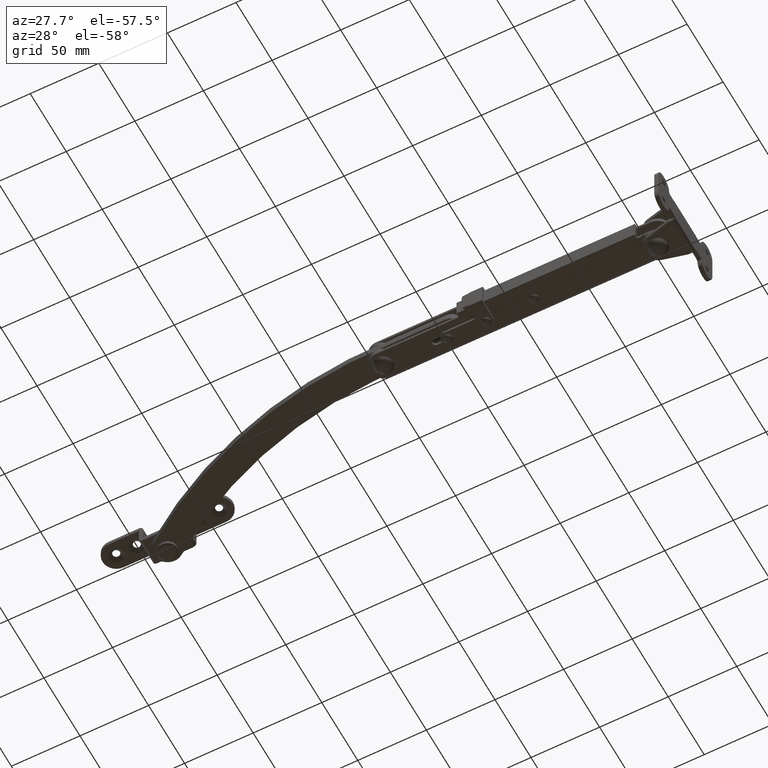
[diagram: clean part render]
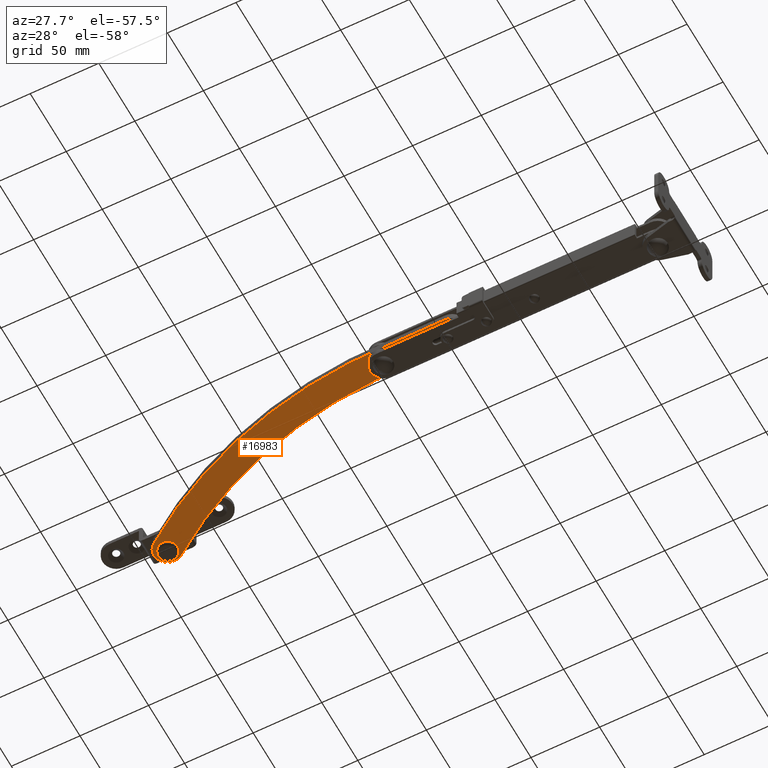
[diagram: same view with one face highlighted and labeled with its STEP entity id]
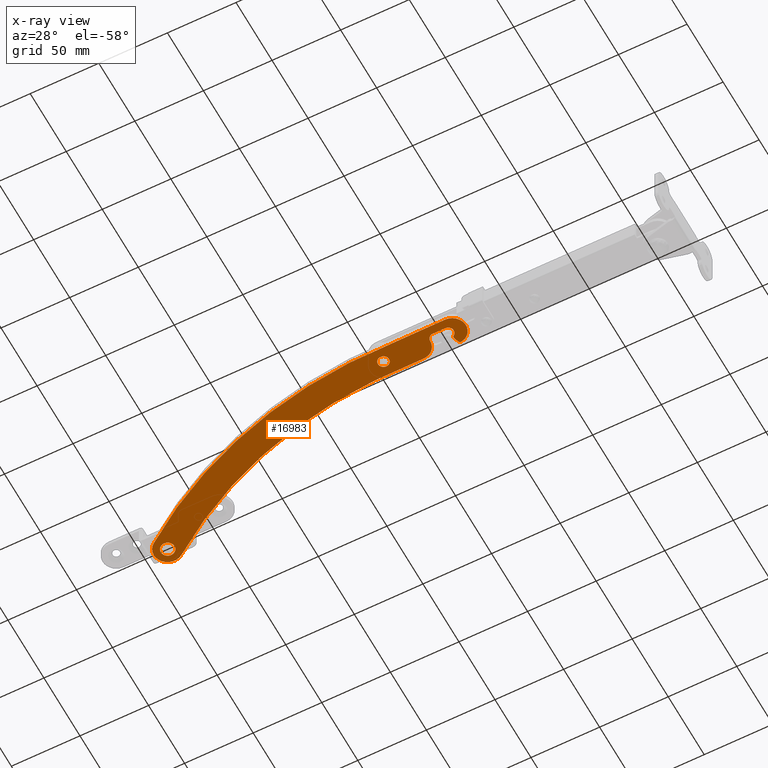
[diagram: x-ray of the same camera — body ghosted, the highlighted face saturated]
A machine part, auxiliary view. The second image highlights one B-rep face of the part: STEP entity #16983.
The next image is the same camera in x-ray: the body ghosted, the highlighted face saturated — about 0% of this face is hidden behind the body in this view.
In plain terms, the highlighted planar face has unit normal (0, 0, -1).
Its self-contained STEP definition (entity closure, byte-faithful):
#4 = AXIS2_PLACEMENT_3D ( 'NONE', #7886, #17259, #9210 ) ;
#16 = CARTESIAN_POINT ( 'NONE',  ( -400.0944209999999000, 62.25456200000019900, -2.500000000000000000 ) ) ;
#80 = CARTESIAN_POINT ( 'NONE',  ( -390.0944210000000100, 62.25456200000019900, -2.500000000000000000 ) ) ;
#166 = CIRCLE ( 'NONE', #11051, 1.999999999999946300 ) ;
#403 = AXIS2_PLACEMENT_3D ( 'NONE', #9943, #1928, #11292 ) ;
#450 = CIRCLE ( 'NONE', #5462, 331.0000000000000600 ) ;
#537 = ORIENTED_EDGE ( 'NONE', *, *, #7582, .T. ) ;
#558 = ORIENTED_EDGE ( 'NONE', *, *, #10688, .T. ) ;
#584 = DIRECTION ( 'NONE',  ( -0.9999867699363695900, 0.005143923816146010000, 0.0000000000000000000 ) ) ;
#984 = EDGE_LOOP ( 'NONE', ( #16125, #14957 ) ) ;
#1027 = EDGE_CURVE ( 'NONE', #8924, #13324, #14780, .T. ) ;
#1157 = EDGE_CURVE ( 'NONE', #16368, #7941, #166, .T. ) ;
#1212 = AXIS2_PLACEMENT_3D ( 'NONE', #13767, #5725, #15075 ) ;
#1330 = CARTESIAN_POINT ( 'NONE',  ( -152.8789256107080000, -4.100003260249288900, -2.500000000000000000 ) ) ;
#1411 = DIRECTION ( 'NONE',  ( -1.000000000000000000, 0.0000000000000000000, 0.0000000000000000000 ) ) ;
#1519 = CARTESIAN_POINT ( 'NONE',  ( -165.9922938287721200, 0.003207617166450330400, -2.500000000000000000 ) ) ;
#1634 = DIRECTION ( 'NONE',  ( -0.0000000000000000000, 0.0000000000000000000, -1.000000000000000000 ) ) ;
#1767 = CARTESIAN_POINT ( 'NONE',  ( -199.9999689999999900, 0.0000000000000000000, -2.500000000000000000 ) ) ;
#1845 = EDGE_CURVE ( 'NONE', #6040, #8254, #14354, .T. ) ;
#1863 = CARTESIAN_POINT ( 'NONE',  ( -149.3073321932707000, 4.945067042652248700, -2.500000000000000000 ) ) ;
#1928 = DIRECTION ( 'NONE',  ( 0.0000000000000000000, 0.0000000000000000000, -1.000000000000000000 ) ) ;
#1934 = CIRCLE ( 'NONE', #4, 9.999999999999897000 ) ;
#2192 = VERTEX_POINT ( 'NONE', #6268 ) ;
#2231 = CARTESIAN_POINT ( 'NONE',  ( -151.2229849175185700, 5.519762301099167000, -2.500000000000000000 ) ) ;
#2401 = CARTESIAN_POINT ( 'NONE',  ( -390.0396720000000000, 62.32917800000009800, -2.500000000000000000 ) ) ;
#3027 = CARTESIAN_POINT ( 'NONE',  ( -199.9999689999999900, 0.0000000000000000000, -2.500000000000000000 ) ) ;
#3110 = DIRECTION ( 'NONE',  ( 1.000000000000000000, 0.0000000000000000000, 0.0000000000000000000 ) ) ;
#3143 = CARTESIAN_POINT ( 'NONE',  ( -200.1210320000000100, 321.0000000000000000, -2.500000000000000000 ) ) ;
#3200 = DIRECTION ( 'NONE',  ( 1.000000000000000000, 0.0000000000000000000, 0.0000000000000000000 ) ) ;
#3434 = EDGE_CURVE ( 'NONE', #15700, #7438, #9728, .T. ) ;
#3469 = AXIS2_PLACEMENT_3D ( 'NONE', #2401, #11768, #3750 ) ;
#3750 = DIRECTION ( 'NONE',  ( 1.000000000000000000, 0.0000000000000000000, 0.0000000000000000000 ) ) ;
#3815 = CIRCLE ( 'NONE', #13217, 10.00000000000003700 ) ;
#3919 = ORIENTED_EDGE ( 'NONE', *, *, #17278, .T. ) ;
#3987 = CIRCLE ( 'NONE', #3469, 5.000000000000004400 ) ;
#4099 = DIRECTION ( 'NONE',  ( -0.0000000000000000000, 0.0000000000000000000, -1.000000000000000000 ) ) ;
#4106 = LINE ( 'NONE', #2231, #14359 ) ;
#4171 = FACE_OUTER_BOUND ( 'NONE', #15036, .T. ) ;
#4243 = AXIS2_PLACEMENT_3D ( 'NONE', #16113, #13506, #5467 ) ;
#4294 = DIRECTION ( 'NONE',  ( 0.0000000000000000000, -0.0000000000000000000, 1.000000000000000000 ) ) ;
#4371 = DIRECTION ( 'NONE',  ( 1.000000000000000000, 0.0000000000000000000, 0.0000000000000000000 ) ) ;
#4431 = CARTESIAN_POINT ( 'NONE',  ( -396.0186068210719600, 54.07446283450070000, -2.500000000000000000 ) ) ;
#4472 = VECTOR ( 'NONE', #13363, 1000.000000000000100 ) ;
#4479 = DIRECTION ( 'NONE',  ( 1.000000000000000000, 0.0000000000000000000, 0.0000000000000000000 ) ) ;
#4539 = VECTOR ( 'NONE', #10697, 1000.000000000000100 ) ;
#4697 = EDGE_CURVE ( 'NONE', #8254, #6040, #5498, .T. ) ;
#5132 = CIRCLE ( 'NONE', #10228, 9.999999999999897000 ) ;
#5231 = ORIENTED_EDGE ( 'NONE', *, *, #6882, .T. ) ;
#5306 = ORIENTED_EDGE ( 'NONE', *, *, #6057, .T. ) ;
#5462 = AXIS2_PLACEMENT_3D ( 'NONE', #14377, #6374, #15702 ) ;
#5467 = DIRECTION ( 'NONE',  ( -1.000000000000000000, 0.0000000000000000000, -0.0000000000000000000 ) ) ;
#5485 = CIRCLE ( 'NONE', #403, 9.999999999999980500 ) ;
#5498 = CIRCLE ( 'NONE', #13771, 4.049999999999998000 ) ;
#5568 = AXIS2_PLACEMENT_3D ( 'NONE', #12328, #4294, #13669 ) ;
#5725 = DIRECTION ( 'NONE',  ( -0.0000000000000000000, 0.0000000000000000000, -1.000000000000000000 ) ) ;
#5787 = DIRECTION ( 'NONE',  ( 1.000000000000000000, 0.0000000000000000000, 0.0000000000000000000 ) ) ;
#5978 = ORIENTED_EDGE ( 'NONE', *, *, #1027, .T. ) ;
#6040 = VERTEX_POINT ( 'NONE', #16511 ) ;
#6057 = EDGE_CURVE ( 'NONE', #11705, #12686, #16172, .T. ) ;
#6084 = CARTESIAN_POINT ( 'NONE',  ( -395.9599515159129600, 54.15545391534716700, -2.500000000000000000 ) ) ;
#6214 = CARTESIAN_POINT ( 'NONE',  ( -152.8789256107080000, -4.100003260249291500, -2.500000000000000000 ) ) ;
#6256 = ORIENTED_EDGE ( 'NONE', *, *, #6762, .T. ) ;
#6268 = CARTESIAN_POINT ( 'NONE',  ( -150.4783464358345400, 3.323732517110905300, -2.500000000000000000 ) ) ;
#6290 = FACE_BOUND ( 'NONE', #984, .T. ) ;
#6339 = ORIENTED_EDGE ( 'NONE', *, *, #17304, .T. ) ;
#6374 = DIRECTION ( 'NONE',  ( 0.0000000000000000000, 0.0000000000000000000, -1.000000000000000000 ) ) ;
#6624 = CARTESIAN_POINT ( 'NONE',  ( -152.8789256330900900, -3.260249296227479800E-006, -2.500000000000000000 ) ) ;
#6762 = EDGE_CURVE ( 'NONE', #13324, #2192, #11367, .T. ) ;
#6882 = EDGE_CURVE ( 'NONE', #8015, #13680, #3815, .T. ) ;
#6883 = CARTESIAN_POINT ( 'NONE',  ( -149.3073321932707000, 4.945067042652248700, -2.500000000000000000 ) ) ;
#7082 = CARTESIAN_POINT ( 'NONE',  ( -149.8789394428774500, -10.00002549482168500, -2.500000000000000000 ) ) ;
#7172 = AXIS2_PLACEMENT_3D ( 'NONE', #9639, #1634, #10994 ) ;
#7209 = DIRECTION ( 'NONE',  ( 0.0000000000000000000, 0.0000000000000000000, -1.000000000000000000 ) ) ;
#7223 = CIRCLE ( 'NONE', #12828, 0.09999999999993347500 ) ;
#7314 = CARTESIAN_POINT ( 'NONE',  ( -384.3714106253735300, 70.45499810132565700, -2.500000000000000000 ) ) ;
#7409 = EDGE_CURVE ( 'NONE', #16491, #13508, #1934, .T. ) ;
#7438 = VERTEX_POINT ( 'NONE', #7936 ) ;
#7582 = EDGE_CURVE ( 'NONE', #9775, #8015, #14464, .T. ) ;
#7692 = ORIENTED_EDGE ( 'NONE', *, *, #1157, .T. ) ;
#7693 = CARTESIAN_POINT ( 'NONE',  ( -150.3461770281395500, 8.442458107691136200, -2.500000000000000000 ) ) ;
#7829 = VECTOR ( 'NONE', #584, 1000.000000000000000 ) ;
#7883 = VERTEX_POINT ( 'NONE', #12819 ) ;
#7886 = CARTESIAN_POINT ( 'NONE',  ( -390.0944210000000100, 62.25456200000019900, -2.500000000000000000 ) ) ;
#7936 = CARTESIAN_POINT ( 'NONE',  ( -395.0396720000000000, 62.32917800000009800, -2.500000000000000000 ) ) ;
#7941 = VERTEX_POINT ( 'NONE', #16093 ) ;
#7954 = DIRECTION ( 'NONE',  ( 1.000000000000000000, 0.0000000000000000000, 0.0000000000000000000 ) ) ;
#7978 = ORIENTED_EDGE ( 'NONE', *, *, #4697, .F. ) ;
#8014 = CARTESIAN_POINT ( 'NONE',  ( -395.9460600592290100, 54.14328846450936100, -2.500000000000000000 ) ) ;
#8015 = VERTEX_POINT ( 'NONE', #9490 ) ;
#8026 = LINE ( 'NONE', #10666, #4472 ) ;
#8218 = DIRECTION ( 'NONE',  ( 1.000000000000000000, 0.0000000000000000000, 0.0000000000000000000 ) ) ;
#8254 = VERTEX_POINT ( 'NONE', #9229 ) ;
#8776 = CIRCLE ( 'NONE', #13223, 311.0000000000004000 ) ;
#8924 = VERTEX_POINT ( 'NONE', #14538 ) ;
#9210 = DIRECTION ( 'NONE',  ( -1.000000000000000000, 0.0000000000000000000, 0.0000000000000000000 ) ) ;
#9229 = CARTESIAN_POINT ( 'NONE',  ( -195.9499690000000100, 4.959819536546777600E-016, -2.500000000000000000 ) ) ;
#9312 = ORIENTED_EDGE ( 'NONE', *, *, #11805, .T. ) ;
#9404 = DIRECTION ( 'NONE',  ( 0.0000000000000000000, 0.0000000000000000000, -1.000000000000000000 ) ) ;
#9490 = CARTESIAN_POINT ( 'NONE',  ( -148.0684205054978100, 9.834709935260610400, -2.500000000000000000 ) ) ;
#9623 = AXIS2_PLACEMENT_3D ( 'NONE', #6624, #15951, #7954 ) ;
#9639 = CARTESIAN_POINT ( 'NONE',  ( -148.4305243038916400, 7.867762849244157600, -2.500000000000000000 ) ) ;
#9728 = CIRCLE ( 'NONE', #1212, 5.000000000000004400 ) ;
#9775 = VERTEX_POINT ( 'NONE', #7693 ) ;
#9779 = CARTESIAN_POINT ( 'NONE',  ( -151.3073321932706400, 4.945067042652248700, -2.500000000000000000 ) ) ;
#9943 = CARTESIAN_POINT ( 'NONE',  ( -175.9922936823581100, 0.001496395371794600900, -2.500000000000000000 ) ) ;
#10086 = CARTESIAN_POINT ( 'NONE',  ( -385.0396720000000000, 62.32917800000009800, -2.500000000000000000 ) ) ;
#10093 = ORIENTED_EDGE ( 'NONE', *, *, #12246, .T. ) ;
#10135 = ORIENTED_EDGE ( 'NONE', *, *, #1845, .F. ) ;
#10228 = AXIS2_PLACEMENT_3D ( 'NONE', #80, #9404, #1411 ) ;
#10258 = DIRECTION ( 'NONE',  ( 0.2873476292234573000, 0.9578263621239804200, 0.0000000000000000000 ) ) ;
#10431 = EDGE_CURVE ( 'NONE', #7941, #9775, #4106, .T. ) ;
#10666 = CARTESIAN_POINT ( 'NONE',  ( -175.8193033078046300, 9.999999999927416300, -2.500000000000000000 ) ) ;
#10688 = EDGE_CURVE ( 'NONE', #13508, #13805, #5132, .T. ) ;
#10697 = DIRECTION ( 'NONE',  ( 0.9999999057722428500, -0.0004341146224644208700, -0.0000000000000000000 ) ) ;
#10815 = VERTEX_POINT ( 'NONE', #1519 ) ;
#10994 = DIRECTION ( 'NONE',  ( 1.000000000000000000, 0.0000000000000000000, 0.0000000000000000000 ) ) ;
#11051 = AXIS2_PLACEMENT_3D ( 'NONE', #6883, #16226, #8218 ) ;
#11132 = DIRECTION ( 'NONE',  ( -0.0000000000000000000, 0.0000000000000000000, -1.000000000000000000 ) ) ;
#11222 = DIRECTION ( 'NONE',  ( -0.0000000000000000000, 0.0000000000000000000, -1.000000000000000000 ) ) ;
#11292 = DIRECTION ( 'NONE',  ( -1.000000000000000000, 0.0000000000000000000, 0.0000000000000000000 ) ) ;
#11367 = CIRCLE ( 'NONE', #9623, 4.099999999999992500 ) ;
#11409 = LINE ( 'NONE', #16588, #7829 ) ;
#11521 = AXIS2_PLACEMENT_3D ( 'NONE', #1767, #11132, #3110 ) ;
#11705 = VERTEX_POINT ( 'NONE', #15435 ) ;
#11768 = DIRECTION ( 'NONE',  ( -0.0000000000000000000, 0.0000000000000000000, -1.000000000000000000 ) ) ;
#11805 = EDGE_CURVE ( 'NONE', #12686, #16491, #7223, .T. ) ;
#12123 = CARTESIAN_POINT ( 'NONE',  ( -149.8789394974679700, -2.549482167393812800E-005, -2.500000000000000000 ) ) ;
#12163 = PLANE ( 'NONE',  #4243 ) ;
#12246 = EDGE_CURVE ( 'NONE', #13680, #7883, #11409, .T. ) ;
#12328 = CARTESIAN_POINT ( 'NONE',  ( -161.8922938888019900, 0.003909218102257571200, -2.500000000000000000 ) ) ;
#12408 = DIRECTION ( 'NONE',  ( -0.0000000000000000000, 0.0000000000000000000, -1.000000000000000000 ) ) ;
#12528 = DIRECTION ( 'NONE',  ( 0.0000000000000000000, -0.0000000000000000000, 1.000000000000000000 ) ) ;
#12630 = ORIENTED_EDGE ( 'NONE', *, *, #16702, .T. ) ;
#12642 = EDGE_CURVE ( 'NONE', #15180, #12846, #8026, .T. ) ;
#12686 = VERTEX_POINT ( 'NONE', #8014 ) ;
#12783 = CARTESIAN_POINT ( 'NONE',  ( -211.2709216193495600, 10.19993571191711200, -2.500000000000000000 ) ) ;
#12819 = CARTESIAN_POINT ( 'NONE',  ( -188.6353280995979800, -9.800662946603370800, -2.500000000000000000 ) ) ;
#12828 = AXIS2_PLACEMENT_3D ( 'NONE', #4431, #13819, #5787 ) ;
#12846 = VERTEX_POINT ( 'NONE', #14908 ) ;
#13189 = ORIENTED_EDGE ( 'NONE', *, *, #12642, .T. ) ;
#13217 = AXIS2_PLACEMENT_3D ( 'NONE', #12123, #4099, #13466 ) ;
#13223 = AXIS2_PLACEMENT_3D ( 'NONE', #3143, #12528, #4479 ) ;
#13324 = VERTEX_POINT ( 'NONE', #6214 ) ;
#13363 = DIRECTION ( 'NONE',  ( 0.9999840973953542100, -0.005639588318201127000, -0.0000000000000000000 ) ) ;
#13376 = ORIENTED_EDGE ( 'NONE', *, *, #15471, .T. ) ;
#13466 = DIRECTION ( 'NONE',  ( 1.000000000000000000, 0.0000000000000000000, 0.0000000000000000000 ) ) ;
#13506 = DIRECTION ( 'NONE',  ( 0.0000000000000000000, 0.0000000000000000000, -1.000000000000000000 ) ) ;
#13508 = VERTEX_POINT ( 'NONE', #16 ) ;
#13669 = DIRECTION ( 'NONE',  ( 1.000000000000000000, 0.0000000000000000000, 0.0000000000000000000 ) ) ;
#13680 = VERTEX_POINT ( 'NONE', #7082 ) ;
#13744 = EDGE_CURVE ( 'NONE', #12846, #10815, #5485, .T. ) ;
#13767 = CARTESIAN_POINT ( 'NONE',  ( -390.0396720000000000, 62.32917800000009800, -2.500000000000000000 ) ) ;
#13771 = AXIS2_PLACEMENT_3D ( 'NONE', #3027, #12408, #4371 ) ;
#13805 = VERTEX_POINT ( 'NONE', #7314 ) ;
#13819 = DIRECTION ( 'NONE',  ( 0.0000000000000000000, -0.0000000000000000000, 1.000000000000000000 ) ) ;
#13898 = AXIS2_PLACEMENT_3D ( 'NONE', #15198, #7209, #16568 ) ;
#14117 = ORIENTED_EDGE ( 'NONE', *, *, #7409, .T. ) ;
#14302 = EDGE_LOOP ( 'NONE', ( #10135, #7978 ) ) ;
#14354 = CIRCLE ( 'NONE', #11521, 4.049999999999998000 ) ;
#14359 = VECTOR ( 'NONE', #10258, 1000.000000000000100 ) ;
#14377 = CARTESIAN_POINT ( 'NONE',  ( -200.1210320000000100, 321.0000000000000000, -2.500000000000000000 ) ) ;
#14422 = FACE_BOUND ( 'NONE', #14302, .T. ) ;
#14464 = CIRCLE ( 'NONE', #7172, 1.999999999999946300 ) ;
#14538 = CARTESIAN_POINT ( 'NONE',  ( -161.8916049113974200, -4.096090724008608000, -2.500000000000000000 ) ) ;
#14780 = LINE ( 'NONE', #1330, #4539 ) ;
#14908 = CARTESIAN_POINT ( 'NONE',  ( -175.8193033078046300, 9.999999999927414500, -2.500000000000000000 ) ) ;
#14957 = ORIENTED_EDGE ( 'NONE', *, *, #3434, .F. ) ;
#15036 = EDGE_LOOP ( 'NONE', ( #12630, #5306, #9312, #14117, #558, #3919, #13189, #16478, #13376, #5978, #6256, #6339, #7692, #15058, #537, #5231, #10093 ) ) ;
#15058 = ORIENTED_EDGE ( 'NONE', *, *, #10431, .T. ) ;
#15075 = DIRECTION ( 'NONE',  ( 1.000000000000000000, 0.0000000000000000000, 0.0000000000000000000 ) ) ;
#15180 = VERTEX_POINT ( 'NONE', #12783 ) ;
#15198 = CARTESIAN_POINT ( 'NONE',  ( -395.8735132973865200, 54.21211409451819900, -2.500000000000000000 ) ) ;
#15286 = CIRCLE ( 'NONE', #5568, 4.099999999999881500 ) ;
#15435 = CARTESIAN_POINT ( 'NONE',  ( -395.9326708922179100, 54.13148916677413100, -2.500000000000000000 ) ) ;
#15471 = EDGE_CURVE ( 'NONE', #10815, #8924, #15286, .T. ) ;
#15700 = VERTEX_POINT ( 'NONE', #10086 ) ;
#15702 = DIRECTION ( 'NONE',  ( -1.000000000000000000, 0.0000000000000000000, 0.0000000000000000000 ) ) ;
#15819 = EDGE_CURVE ( 'NONE', #7438, #15700, #3987, .T. ) ;
#15875 = AXIS2_PLACEMENT_3D ( 'NONE', #1863, #11222, #3200 ) ;
#15951 = DIRECTION ( 'NONE',  ( 0.0000000000000000000, -0.0000000000000000000, 1.000000000000000000 ) ) ;
#16093 = CARTESIAN_POINT ( 'NONE',  ( -151.2229849175185700, 5.519762301099167000, -2.500000000000000000 ) ) ;
#16113 = CARTESIAN_POINT ( 'NONE',  ( -200.1210320000000100, 321.0000000000000000, -2.500000000000000000 ) ) ;
#16125 = ORIENTED_EDGE ( 'NONE', *, *, #15819, .F. ) ;
#16172 = CIRCLE ( 'NONE', #13898, 0.09999999999987796400 ) ;
#16226 = DIRECTION ( 'NONE',  ( -0.0000000000000000000, 0.0000000000000000000, -1.000000000000000000 ) ) ;
#16303 = CIRCLE ( 'NONE', #15875, 1.999999999999946300 ) ;
#16368 = VERTEX_POINT ( 'NONE', #9779 ) ;
#16478 = ORIENTED_EDGE ( 'NONE', *, *, #13744, .T. ) ;
#16491 = VERTEX_POINT ( 'NONE', #6084 ) ;
#16511 = CARTESIAN_POINT ( 'NONE',  ( -204.0499690000000000, 0.0000000000000000000, -2.500000000000000000 ) ) ;
#16568 = DIRECTION ( 'NONE',  ( -1.000000000000000000, 0.0000000000000000000, 0.0000000000000000000 ) ) ;
#16588 = CARTESIAN_POINT ( 'NONE',  ( -149.8789394428774500, -10.00002549482168500, -2.500000000000000000 ) ) ;
#16702 = EDGE_CURVE ( 'NONE', #7883, #11705, #450, .T. ) ;
#16983 = ADVANCED_FACE ( 'NONE', ( #14422, #6290, #4171 ), #12163, .T. ) ;
#17259 = DIRECTION ( 'NONE',  ( 0.0000000000000000000, 0.0000000000000000000, -1.000000000000000000 ) ) ;
#17278 = EDGE_CURVE ( 'NONE', #13805, #15180, #8776, .T. ) ;
#17304 = EDGE_CURVE ( 'NONE', #2192, #16368, #16303, .T. ) ;